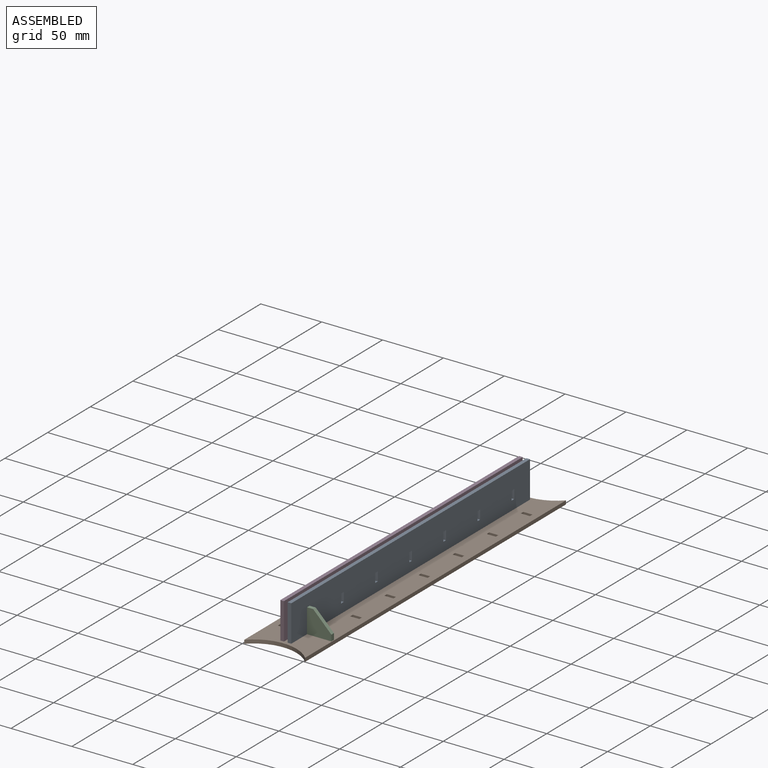
[diagram: assembled view]
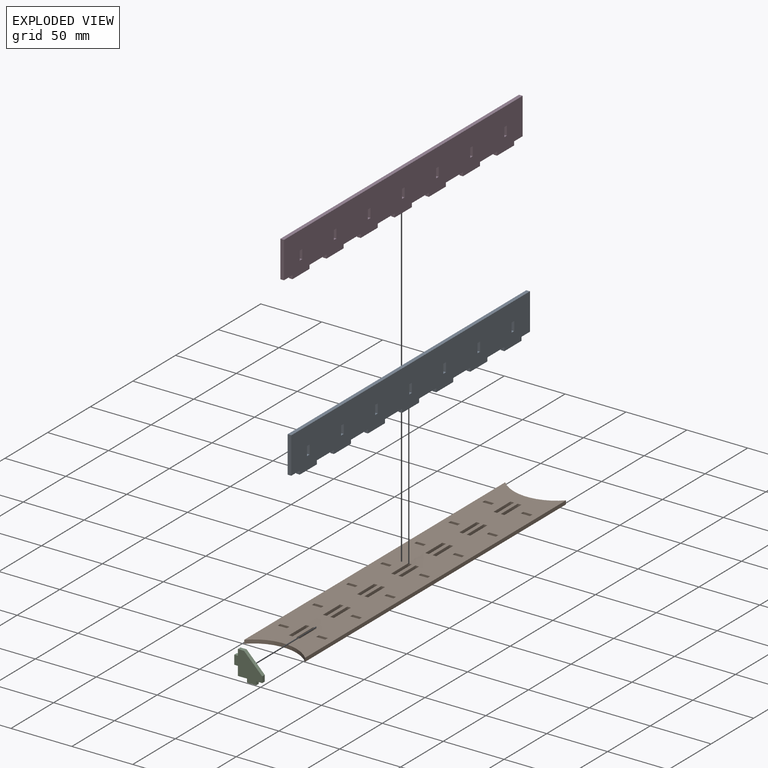
[diagram: exploded view]
GUIDED TOUR — MATED ASSEMBLY (Onshape document f16a4e3d63bdeb27dae0e83d, AutoMate assembly f16a4e3d63bdeb27dae0e83d_4ba44d078bdaf098a974d237_57d0ed7647b12c757feada9e_default)

This assembly has 4 components, labeled P0..P3 below (a component is one placed occurrence of a part; the same part can appear more than once), held together by 3 mates. A mate is a constraint between two components; its type names the relative motion it leaves free:
  FASTENED — locks the two components together rigidly (no relative motion).
Axis/direction vectors are unit vectors and 'through' points are millimeter coordinates, both in the assembly's world frame.

MATES
  1. FASTENED "Fastened 2": P1 <-> P3, direction (0.000, 0.000, -1.000) through (-70.88, 105.11, -66.87) mm
  2. FASTENED "Fastened 3": P2 <-> P1, direction (0.000, 0.000, -1.000) through (-48.38, -124.89, -66.87) mm
  3. FASTENED "Fastened 1": P1 <-> P0, direction (0.000, 0.000, -1.000) through (-64.88, -114.89, -66.87) mm

ASSEMBLY ORDER
  1. P1 — the base component [order verified]
  2. P0 [order verified]
  3. P2 [order verified]
  4. P3 [order verified]
Order-tag legend:
  [order verified] — this step's position reverses a verified removal order: the component was checked to insert without passing through the ones already placed.

Of the 4 components, 4 carry the full construction recipe — the FeatureScript program that regenerates the part's solid from scratch; the rest are supplied as boundary geometry only.
Each toured component is shown spotlighted twice — in the assembled view, then in the exploded view, where a leader line traces a displaced component back to its assembled socket (saturated green if recipe-attached, orange if geometry-only; every other component desaturated gray) — followed by its recipe or geometry summary and the mates that hold it.
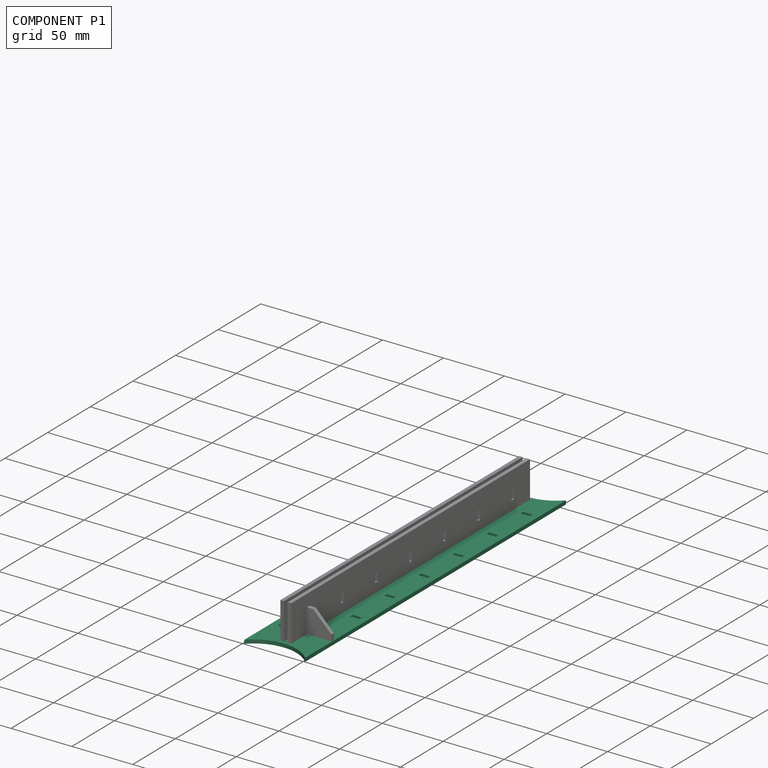
[diagram: component P1 — assembled]
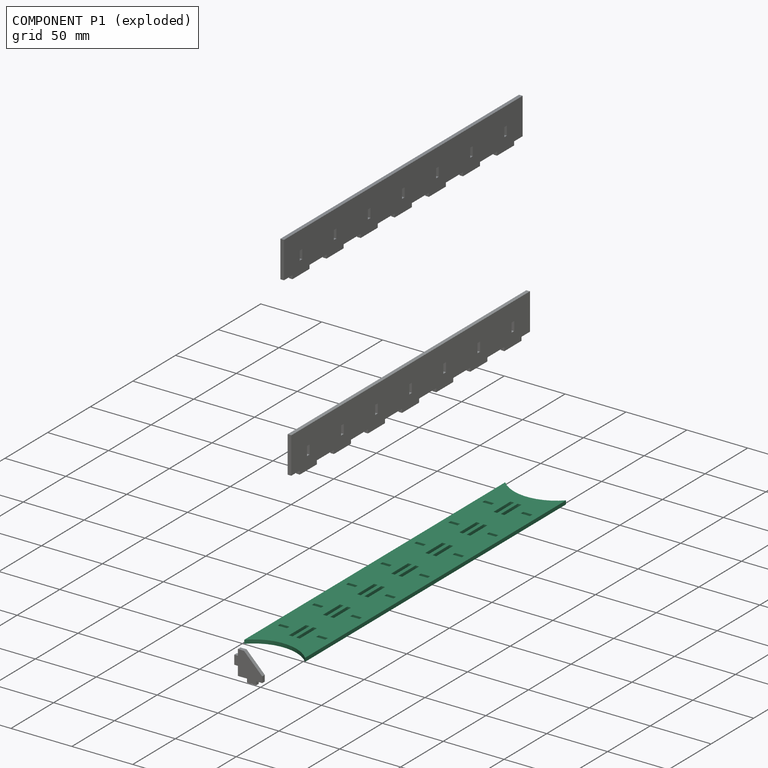
[diagram: component P1 — exploded]
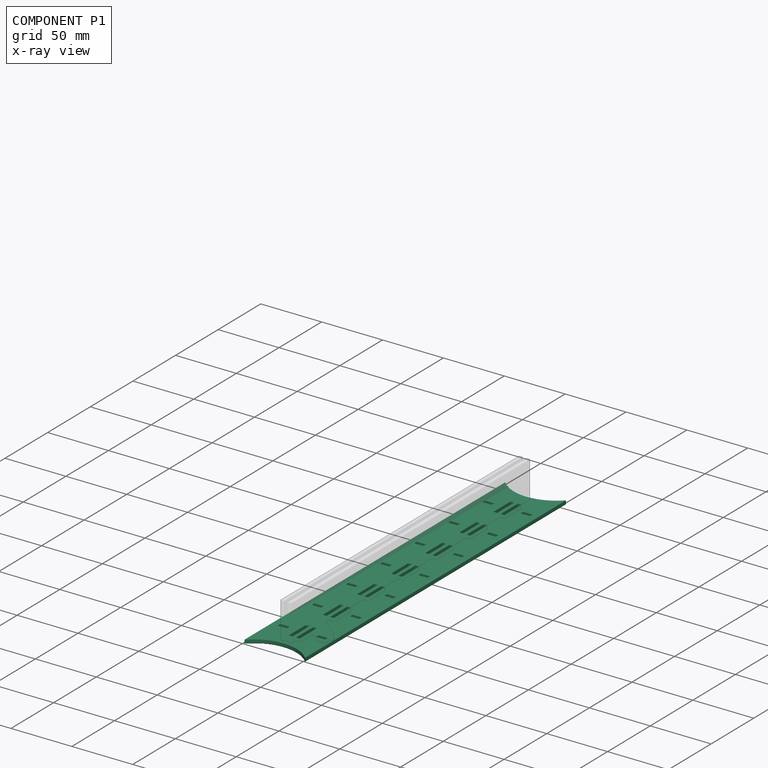
[diagram: component P1 — x-ray view]
COMPONENT P1 — recipe-attached (CADFS 00589757, mesh-verified: the recipe's output STEP matches this component's geometry to below the mesh-comparison resolution (tessellation chordal tolerance ~0.465 mm)).
Held by: FASTENED mate "Fastened 2" to P3; FASTENED mate "Fastened 3" to P2; FASTENED mate "Fastened 1" to P0.
Construction recipe (FeatureScript — the CAD program that rebuilds this solid; sketch coordinates are in the units given by the * unit suffixes, e.g. mm):

FeatureScript 1511;
import(path : "onshape/std/geometry.fs", version : "1511.0");
import(path : "onshape/std/common.fs", version : "1511.0");
const mm = millimeter;
const VERTEX = EntityType.VERTEX;
const EDGE = EntityType.EDGE;
const FACE = EntityType.FACE;
const BODY = EntityType.BODY;
function v(x, y){return vector(x, y);}
function OD(order){return orderDisambiguation(order);}
function OSD(set){return originalSetDisambiguation(set);}
function TD(topology){return topologyDisambiguation(topology);}
function TDD(query){return trueDependencyDisambiguation(query);}
function sQuery(a, b, c) {return sketchEntityQuery(a, b, c);}

annotation { "Feature Type Name" : "Feature", "Feature Type Description" : "" }
export const myFeature = defineFeature(function(context is Context, id is Id, definition is map)
    precondition{}
    {
        {
            var Q0;
            Q0=qCreatedBy(makeId("Top.planeOp"),FACE);
            var sketch = newSketch(context, id + "F0", { "sketchPlane" : qUnion([Q0])});
            skLineSegment(sketch, "E0.bottom", {"start": v(25, 140) * mm, "end": v(-25, 140) * mm});
            skLineSegment(sketch, "E0.top", {"start": v(25, -140) * mm, "end": v(-25, -140) * mm});
            skLineSegment(sketch, "E0.left", {"start": v(25, 140) * mm, "end": v(25, -140) * mm});
            skLineSegment(sketch, "E0.right", {"start": v(-25, 140) * mm, "end": v(-25, -140) * mm});
            skPoint(sketch, "E0.middle", {"position": v(0, 0) * mm});
            skSolve(sketch);
        }
        {
            var Q0;
            Q0=makeQuery(id+"F0.imprint","IMPRINT",FACE,{"disambiguationData":[TD([[makeQuery(id+"F0.imprint","IMPRINT",EDGE,{"derivedFrom":sQuery(id+"F0.wireOp",EDGE,"E0.bottom")}),1.0]])]});
            extrude(context, id + "F1", {"entities" : qUnion([Q0]), "depth" : 3 * mm, "offsetDistance" : 25 * mm});
        }
        {
            var Q0;
            Q0=makeQuery(id+"F1.opExtrude","CAP_FACE",FACE,{"disambiguationData":[OSD([sQuery(id+"F0.wireOp",EDGE,"E0.bottom"),sQuery(id+"F0.wireOp",EDGE,"E0.top"),sQuery(id+"F0.wireOp",EDGE,"E0.left"),sQuery(id+"F0.wireOp",EDGE,"E0.right")])],"isStart":false});
            var sketch = newSketch(context, id + "F2", { "sketchPlane" : qUnion([Q0])});
            skLineSegment(sketch, "E1", {"start": v(0, 140) * mm, "end": v(0, -140) * mm, "construction": true});
            skLineSegment(sketch, "E2.bottom", {"start": v(1.5, 140) * mm, "end": v(-1.5, 140) * mm, "construction": true});
            skLineSegment(sketch, "E2.top", {"start": v(1.5, -140) * mm, "end": v(-1.5, -140) * mm, "construction": true});
            skLineSegment(sketch, "E2.left", {"start": v(1.5, 140) * mm, "end": v(1.5, 130) * mm, "construction": true});
            skLineSegment(sketch, "E2.right", {"start": v(-1.5, 140) * mm, "end": v(-1.5, 130) * mm, "construction": true});
            skPoint(sketch, "E2.middle", {"position": v(0, 0) * mm});
            skLineSegment(sketch, "E3.bottom", {"start": v(1.5, 130) * mm, "end": v(4.5, 130) * mm});
            skLineSegment(sketch, "E3.top", {"start": v(1.5, 110) * mm, "end": v(4.5, 110) * mm});
            skLineSegment(sketch, "E3.right", {"start": v(4.5, 130) * mm, "end": v(4.5, 110) * mm});
            skLineSegment(sketch, "E4.trimOffspring", {"start": v(1.5, 110) * mm, "end": v(1.5, -140) * mm, "construction": true});
            skLineSegment(sketch, "E5", {"start": v(1.5, 130) * mm, "end": v(1.5, 110) * mm});
            skLineSegment(sketch, "E6.0.1.0", {"start": v(4.5, 90) * mm, "end": v(4.5, 70) * mm});
            skLineSegment(sketch, "E6.0.1.1", {"start": v(1.5, 90) * mm, "end": v(4.5, 90) * mm});
            skLineSegment(sketch, "E6.0.1.2", {"start": v(1.5, 90) * mm, "end": v(1.5, 70) * mm});
            skLineSegment(sketch, "E6.0.1.3", {"start": v(1.5, 70) * mm, "end": v(4.5, 70) * mm});
            skLineSegment(sketch, "E6.0.2.0", {"start": v(4.5, 50) * mm, "end": v(4.5, 30) * mm});
            skLineSegment(sketch, "E6.0.2.1", {"start": v(1.5, 50) * mm, "end": v(4.5, 50) * mm});
            skLineSegment(sketch, "E6.0.2.2", {"start": v(1.5, 50) * mm, "end": v(1.5, 30) * mm});
            skLineSegment(sketch, "E6.0.2.3", {"start": v(1.5, 30) * mm, "end": v(4.5, 30) * mm});
            skLineSegment(sketch, "E6.0.3.0", {"start": v(4.5, 10) * mm, "end": v(4.5, -10) * mm});
            skLineSegment(sketch, "E6.0.3.1", {"start": v(1.5, 10) * mm, "end": v(4.5, 10) * mm});
            skLineSegment(sketch, "E6.0.3.2", {"start": v(1.5, 10) * mm, "end": v(1.5, -10) * mm});
            skLineSegment(sketch, "E6.0.3.3", {"start": v(1.5, -10) * mm, "end": v(4.5, -10) * mm});
            skLineSegment(sketch, "E6.0.4.0", {"start": v(4.5, -30) * mm, "end": v(4.5, -50) * mm});
            skLineSegment(sketch, "E6.0.4.1", {"start": v(1.5, -30) * mm, "end": v(4.5, -30) * mm});
            skLineSegment(sketch, "E6.0.4.2", {"start": v(1.5, -30) * mm, "end": v(1.5, -50) * mm});
            skLineSegment(sketch, "E6.0.4.3", {"start": v(1.5, -50) * mm, "end": v(4.5, -50) * mm});
            skLineSegment(sketch, "E6.0.5.0", {"start": v(4.5, -70) * mm, "end": v(4.5, -90) * mm});
            skLineSegment(sketch, "E6.0.5.1", {"start": v(1.5, -70) * mm, "end": v(4.5, -70) * mm});
            skLineSegment(sketch, "E6.0.5.2", {"start": v(1.5, -70) * mm, "end": v(1.5, -90) * mm});
            skLineSegment(sketch, "E6.0.5.3", {"start": v(1.5, -90) * mm, "end": v(4.5, -90) * mm});
            skLineSegment(sketch, "E6.0.6.0", {"start": v(4.5, -110) * mm, "end": v(4.5, -130) * mm});
            skLineSegment(sketch, "E6.0.6.1", {"start": v(1.5, -110) * mm, "end": v(4.5, -110) * mm});
            skLineSegment(sketch, "E6.0.6.2", {"start": v(1.5, -110) * mm, "end": v(1.5, -130) * mm});
            skLineSegment(sketch, "E6.0.6.3", {"start": v(1.5, -130) * mm, "end": v(4.5, -130) * mm});
            skLineSegment(sketch, "E6.direction1", {"start": v(4.5, 110) * mm, "end": v(29.5, 110) * mm, "construction": true});
            skLineSegment(sketch, "E6.direction2", {"start": v(4.5, 110) * mm, "end": v(4.5, 70) * mm, "construction": true});
            skLineSegment(sketch, "E7.bottom", {"start": v(-1.5, 130) * mm, "end": v(-4.5, 130) * mm});
            skLineSegment(sketch, "E7.top", {"start": v(-1.5, 110) * mm, "end": v(-4.5, 110) * mm});
            skLineSegment(sketch, "E7.right", {"start": v(-4.5, 130) * mm, "end": v(-4.5, 110) * mm});
            skLineSegment(sketch, "E8.trimOffspring", {"start": v(-1.5, 110) * mm, "end": v(-1.5, -140) * mm, "construction": true});
            skLineSegment(sketch, "E9", {"start": v(-1.5, 130) * mm, "end": v(-1.5, 110) * mm});
            skLineSegment(sketch, "E10.0.1.0", {"start": v(-1.5, 90) * mm, "end": v(-4.5, 90) * mm});
            skLineSegment(sketch, "E10.0.1.1", {"start": v(-1.5, 90) * mm, "end": v(-1.5, 70) * mm});
            skLineSegment(sketch, "E10.0.1.2", {"start": v(-4.5, 90) * mm, "end": v(-4.5, 70) * mm});
            skLineSegment(sketch, "E10.0.1.3", {"start": v(-1.5, 70) * mm, "end": v(-4.5, 70) * mm});
            skLineSegment(sketch, "E10.0.2.0", {"start": v(-1.5, 50) * mm, "end": v(-4.5, 50) * mm});
            skLineSegment(sketch, "E10.0.2.1", {"start": v(-1.5, 50) * mm, "end": v(-1.5, 30) * mm});
            skLineSegment(sketch, "E10.0.2.2", {"start": v(-4.5, 50) * mm, "end": v(-4.5, 30) * mm});
            skLineSegment(sketch, "E10.0.2.3", {"start": v(-1.5, 30) * mm, "end": v(-4.5, 30) * mm});
            skLineSegment(sketch, "E10.0.3.0", {"start": v(-1.5, 10) * mm, "end": v(-4.5, 10) * mm});
            skLineSegment(sketch, "E10.0.3.1", {"start": v(-1.5, 10) * mm, "end": v(-1.5, -10) * mm});
            skLineSegment(sketch, "E10.0.3.2", {"start": v(-4.5, 10) * mm, "end": v(-4.5, -10) * mm});
            skLineSegment(sketch, "E10.0.3.3", {"start": v(-1.5, -10) * mm, "end": v(-4.5, -10) * mm});
            skLineSegment(sketch, "E10.0.4.0", {"start": v(-1.5, -30) * mm, "end": v(-4.5, -30) * mm});
            skLineSegment(sketch, "E10.0.4.1", {"start": v(-1.5, -30) * mm, "end": v(-1.5, -50) * mm});
            skLineSegment(sketch, "E10.0.4.2", {"start": v(-4.5, -30) * mm, "end": v(-4.5, -50) * mm});
            skLineSegment(sketch, "E10.0.4.3", {"start": v(-1.5, -50) * mm, "end": v(-4.5, -50) * mm});
            skLineSegment(sketch, "E10.0.5.0", {"start": v(-1.5, -70) * mm, "end": v(-4.5, -70) * mm});
            skLineSegment(sketch, "E10.0.5.1", {"start": v(-1.5, -70) * mm, "end": v(-1.5, -90) * mm});
            skLineSegment(sketch, "E10.0.5.2", {"start": v(-4.5, -70) * mm, "end": v(-4.5, -90) * mm});
            skLineSegment(sketch, "E10.0.5.3", {"start": v(-1.5, -90) * mm, "end": v(-4.5, -90) * mm});
            skLineSegment(sketch, "E10.0.6.0", {"start": v(-1.5, -110) * mm, "end": v(-4.5, -110) * mm});
            skLineSegment(sketch, "E10.0.6.1", {"start": v(-1.5, -110) * mm, "end": v(-1.5, -130) * mm});
            skLineSegment(sketch, "E10.0.6.2", {"start": v(-4.5, -110) * mm, "end": v(-4.5, -130) * mm});
            skLineSegment(sketch, "E10.0.6.3", {"start": v(-1.5, -130) * mm, "end": v(-4.5, -130) * mm});
            skLineSegment(sketch, "E10.direction1", {"start": v(-4.5, 130) * mm, "end": v(20.5, 130) * mm, "construction": true});
            skLineSegment(sketch, "E10.direction2", {"start": v(-4.5, 130) * mm, "end": v(-4.5, 90) * mm, "construction": true});
            skSolve(sketch);
        }
        {
            var Q0;
            Q0 = qSketchRegion(id + "F2", true);
            extrude(context, id + "F3", {"entities" : qUnion([Q0]), "operationType" : NewBodyOperationType.REMOVE, "oppositeDirection" : true, "depth" : 25 * mm, "offsetDistance" : 25 * mm});
        }
        {
            var Q0;
            Q0=makeQuery(id+"F1.opExtrude","CAP_FACE",FACE,{"disambiguationData":[OSD([sQuery(id+"F0.wireOp",EDGE,"E0.bottom"),sQuery(id+"F0.wireOp",EDGE,"E0.top"),sQuery(id+"F0.wireOp",EDGE,"E0.left"),sQuery(id+"F0.wireOp",EDGE,"E0.right")])],"isStart":false});
            var sketch = newSketch(context, id + "F4", { "sketchPlane" : qUnion([Q0])});
            skLineSegment(sketch, "E11", {"start": v(4.5, 120) * mm, "end": v(12, 120) * mm, "construction": true});
            skLineSegment(sketch, "E12", {"start": v(12, 120) * mm, "end": v(19.5, 120) * mm, "construction": true});
            skLineSegment(sketch, "E13.bottom", {"start": v(19.5, 121.5) * mm, "end": v(12, 121.5) * mm});
            skLineSegment(sketch, "E13.top", {"start": v(19.5, 118.5) * mm, "end": v(12, 118.5) * mm});
            skLineSegment(sketch, "E13.left", {"start": v(19.5, 121.5) * mm, "end": v(19.5, 118.5) * mm});
            skLineSegment(sketch, "E13.right", {"start": v(12, 121.5) * mm, "end": v(12, 118.5) * mm});
            skPoint(sketch, "E13.middle", {"position": v(15.75, 120) * mm});
            skLineSegment(sketch, "E14.0.1.0", {"start": v(19.5, 81.5) * mm, "end": v(12, 81.5) * mm});
            skLineSegment(sketch, "E14.0.1.1", {"start": v(12, 81.5) * mm, "end": v(12, 78.5) * mm});
            skLineSegment(sketch, "E14.0.1.2", {"start": v(19.5, 78.5) * mm, "end": v(12, 78.5) * mm});
            skLineSegment(sketch, "E14.0.1.3", {"start": v(19.5, 81.5) * mm, "end": v(19.5, 78.5) * mm});
            skLineSegment(sketch, "E14.0.2.0", {"start": v(19.5, 41.5) * mm, "end": v(12, 41.5) * mm});
            skLineSegment(sketch, "E14.0.2.1", {"start": v(12, 41.5) * mm, "end": v(12, 38.5) * mm});
            skLineSegment(sketch, "E14.0.2.2", {"start": v(19.5, 38.5) * mm, "end": v(12, 38.5) * mm});
            skLineSegment(sketch, "E14.0.2.3", {"start": v(19.5, 41.5) * mm, "end": v(19.5, 38.5) * mm});
            skLineSegment(sketch, "E14.0.3.0", {"start": v(19.5, 1.5) * mm, "end": v(12, 1.5) * mm});
            skLineSegment(sketch, "E14.0.3.1", {"start": v(12, 1.5) * mm, "end": v(12, -1.5) * mm});
            skLineSegment(sketch, "E14.0.3.2", {"start": v(19.5, -1.5) * mm, "end": v(12, -1.5) * mm});
            skLineSegment(sketch, "E14.0.3.3", {"start": v(19.5, 1.5) * mm, "end": v(19.5, -1.5) * mm});
            skLineSegment(sketch, "E14.0.4.0", {"start": v(19.5, -38.5) * mm, "end": v(12, -38.5) * mm});
            skLineSegment(sketch, "E14.0.4.1", {"start": v(12, -38.5) * mm, "end": v(12, -41.5) * mm});
            skLineSegment(sketch, "E14.0.4.2", {"start": v(19.5, -41.5) * mm, "end": v(12, -41.5) * mm});
            skLineSegment(sketch, "E14.0.4.3", {"start": v(19.5, -38.5) * mm, "end": v(19.5, -41.5) * mm});
            skLineSegment(sketch, "E14.0.5.0", {"start": v(19.5, -78.5) * mm, "end": v(12, -78.5) * mm});
            skLineSegment(sketch, "E14.0.5.1", {"start": v(12, -78.5) * mm, "end": v(12, -81.5) * mm});
            skLineSegment(sketch, "E14.0.5.2", {"start": v(19.5, -81.5) * mm, "end": v(12, -81.5) * mm});
            skLineSegment(sketch, "E14.0.5.3", {"start": v(19.5, -78.5) * mm, "end": v(19.5, -81.5) * mm});
            skLineSegment(sketch, "E14.0.6.0", {"start": v(19.5, -118.5) * mm, "end": v(12, -118.5) * mm});
            skLineSegment(sketch, "E14.0.6.1", {"start": v(12, -118.5) * mm, "end": v(12, -121.5) * mm});
            skLineSegment(sketch, "E14.0.6.2", {"start": v(19.5, -121.5) * mm, "end": v(12, -121.5) * mm});
            skLineSegment(sketch, "E14.0.6.3", {"start": v(19.5, -118.5) * mm, "end": v(19.5, -121.5) * mm});
            skLineSegment(sketch, "E14.direction1", {"start": v(12, 118.5) * mm, "end": v(37, 118.5) * mm, "construction": true});
            skLineSegment(sketch, "E14.direction2", {"start": v(12, 118.5) * mm, "end": v(12, 78.5) * mm, "construction": true});
            skLineSegment(sketch, "E15", {"start": v(0, 140) * mm, "end": v(0, 132.73) * mm, "construction": true});
            skPoint(sketch, "E15.endSnap0", {"position": v(0, 140) * mm});
            skLineSegment(sketch, "E16.MirrorCS", {"start": v(-19.5, 121.5) * mm, "end": v(-12, 121.5) * mm});
            skLineSegment(sketch, "E17.MirrorCS", {"start": v(-19.5, 118.5) * mm, "end": v(-12, 118.5) * mm});
            skLineSegment(sketch, "E18.MirrorCS", {"start": v(-12, 121.5) * mm, "end": v(-12, 118.5) * mm});
            skLineSegment(sketch, "E19.MirrorCS", {"start": v(-12, 120) * mm, "end": v(-19.5, 120) * mm, "construction": true});
            skLineSegment(sketch, "E20.MirrorCS", {"start": v(-19.5, 121.5) * mm, "end": v(-19.5, 118.5) * mm});
            skLineSegment(sketch, "E21.MirrorCS", {"start": v(-19.5, -78.5) * mm, "end": v(-19.5, -81.5) * mm});
            skLineSegment(sketch, "E22.MirrorCS", {"start": v(-19.5, 41.5) * mm, "end": v(-19.5, 38.5) * mm});
            skLineSegment(sketch, "E23.MirrorCS", {"start": v(-19.5, 81.5) * mm, "end": v(-12, 81.5) * mm});
            skLineSegment(sketch, "E24.MirrorCS", {"start": v(-12, 81.5) * mm, "end": v(-12, 78.5) * mm});
            skLineSegment(sketch, "E25.MirrorCS", {"start": v(-19.5, 78.5) * mm, "end": v(-12, 78.5) * mm});
            skLineSegment(sketch, "E26.MirrorCS", {"start": v(-19.5, -78.5) * mm, "end": v(-12, -78.5) * mm});
            skLineSegment(sketch, "E27.MirrorCS", {"start": v(-19.5, -38.5) * mm, "end": v(-12, -38.5) * mm});
            skLineSegment(sketch, "E28.MirrorCS", {"start": v(-19.5, -118.5) * mm, "end": v(-12, -118.5) * mm});
            skLineSegment(sketch, "E29.MirrorCS", {"start": v(-12, -38.5) * mm, "end": v(-12, -41.5) * mm});
            skLineSegment(sketch, "E30.MirrorCS", {"start": v(-19.5, -1.5) * mm, "end": v(-12, -1.5) * mm});
            skLineSegment(sketch, "E31.MirrorCS", {"start": v(-12, -118.5) * mm, "end": v(-12, -121.5) * mm});
            skLineSegment(sketch, "E32.MirrorCS", {"start": v(-19.5, -118.5) * mm, "end": v(-19.5, -121.5) * mm});
            skLineSegment(sketch, "E33.MirrorCS", {"start": v(-19.5, -41.5) * mm, "end": v(-12, -41.5) * mm});
            skLineSegment(sketch, "E34.MirrorCS", {"start": v(-19.5, 1.5) * mm, "end": v(-12, 1.5) * mm});
            skLineSegment(sketch, "E35.MirrorCS", {"start": v(-12, 1.5) * mm, "end": v(-12, -1.5) * mm});
            skLineSegment(sketch, "E36.MirrorCS", {"start": v(-12, -78.5) * mm, "end": v(-12, -81.5) * mm});
            skLineSegment(sketch, "E37.MirrorCS", {"start": v(-19.5, 81.5) * mm, "end": v(-19.5, 78.5) * mm});
            skLineSegment(sketch, "E38.MirrorCS", {"start": v(-19.5, 41.5) * mm, "end": v(-12, 41.5) * mm});
            skLineSegment(sketch, "E39.MirrorCS", {"start": v(-19.5, -121.5) * mm, "end": v(-12, -121.5) * mm});
            skLineSegment(sketch, "E40.MirrorCS", {"start": v(-12, 41.5) * mm, "end": v(-12, 38.5) * mm});
            skLineSegment(sketch, "E41.MirrorCS", {"start": v(-19.5, 38.5) * mm, "end": v(-12, 38.5) * mm});
            skLineSegment(sketch, "E42.MirrorCS", {"start": v(-19.5, -81.5) * mm, "end": v(-12, -81.5) * mm});
            skLineSegment(sketch, "E43.MirrorCS", {"start": v(-19.5, 1.5) * mm, "end": v(-19.5, -1.5) * mm});
            skLineSegment(sketch, "E44.MirrorCS", {"start": v(-19.5, -38.5) * mm, "end": v(-19.5, -41.5) * mm});
            skPoint(sketch, "E45.MirrorP", {"position": v(-15.75, 120) * mm});
            skLineSegment(sketch, "E46.MirrorCS", {"start": v(-12, 118.5) * mm, "end": v(-12, 78.5) * mm, "construction": true});
            skLineSegment(sketch, "E47.MirrorCS", {"start": v(-12, 118.5) * mm, "end": v(-37, 118.5) * mm, "construction": true});
            skSolve(sketch);
        }
        {
            var Q0;
            Q0 = qSketchRegion(id + "F4", true);
            extrude(context, id + "F5", {"entities" : qUnion([Q0]), "operationType" : NewBodyOperationType.REMOVE, "oppositeDirection" : true, "depth" : 25 * mm, "offsetDistance" : 25 * mm});
        }
        {
            var Q0;
            Q0=makeQuery(id+"F1.opExtrude","CAP_FACE",FACE,{"disambiguationData":[OSD([sQuery(id+"F0.wireOp",EDGE,"E0.bottom"),sQuery(id+"F0.wireOp",EDGE,"E0.top"),sQuery(id+"F0.wireOp",EDGE,"E0.left"),sQuery(id+"F0.wireOp",EDGE,"E0.right")])],"isStart":false});
            var sketch = newSketch(context, id + "F6", { "sketchPlane" : qUnion([Q0])});
            skLineSegment(sketch, "E48", {"start": v(0, 140) * mm, "end": v(0, 142.5) * mm, "construction": true});
            skPoint(sketch, "E48.endSnap0", {"position": v(0, 140) * mm});
            skLineSegment(sketch, "E49", {"start": v(0, 142.5) * mm, "end": v(0, 177.5) * mm, "construction": true});
            skArc(sketch, "E50", {"start": v(-25, 153) * mm, "mid": v(0, 142.5) * mm, "end": v(25, 153) * mm});
            skLineSegment(sketch, "E51", {"start": v(-25, 140) * mm, "end": v(-25, 153) * mm});
            skLineSegment(sketch, "E52.MirrorCS", {"start": v(25, 140) * mm, "end": v(25, 153) * mm});
            skLineSegment(sketch, "E53", {"start": v(-25, 140) * mm, "end": v(25, 140) * mm});
            skLineSegment(sketch, "E54.MirrorCS", {"start": v(0, -140) * mm, "end": v(0, -142.5) * mm, "construction": true});
            skPoint(sketch, "E55.MirrorP", {"position": v(0, -140) * mm});
            skLineSegment(sketch, "E56.MirrorCS", {"start": v(-25, -140) * mm, "end": v(25, -140) * mm});
            skLineSegment(sketch, "E57.MirrorCS", {"start": v(25, -140) * mm, "end": v(25, -153) * mm});
            skLineSegment(sketch, "E58.MirrorCS", {"start": v(-25, -140) * mm, "end": v(-25, -153) * mm});
            skArc(sketch, "E59.MirrorCS", {"start": v(-25, -153) * mm, "mid": v(0, -142.5) * mm, "end": v(25, -153) * mm});
            skSolve(sketch);
        }
        {
            var Q0;
            Q0 = qSketchRegion(id + "F6", true);
            extrude(context, id + "F7", {"entities" : qUnion([Q0]), "operationType" : NewBodyOperationType.ADD, "oppositeDirection" : true, "depth" : 3 * mm, "offsetDistance" : 25 * mm});
        }
    });
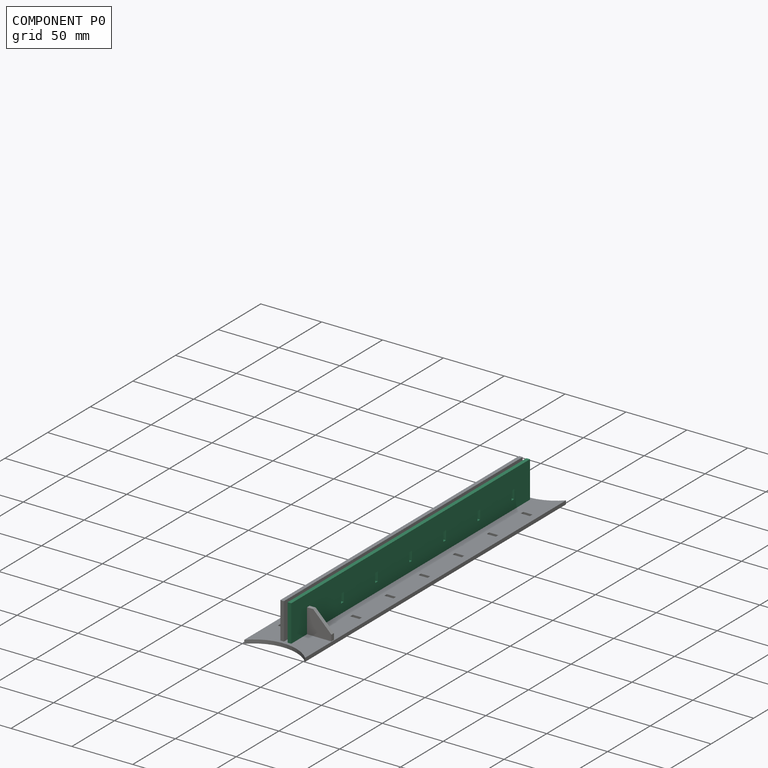
[diagram: component P0 — assembled]
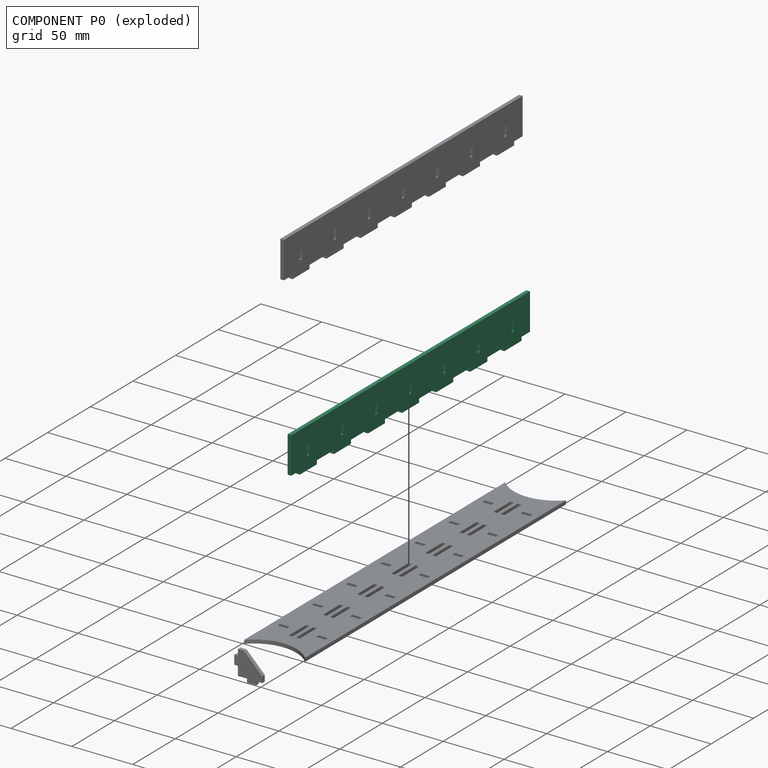
[diagram: component P0 — exploded]
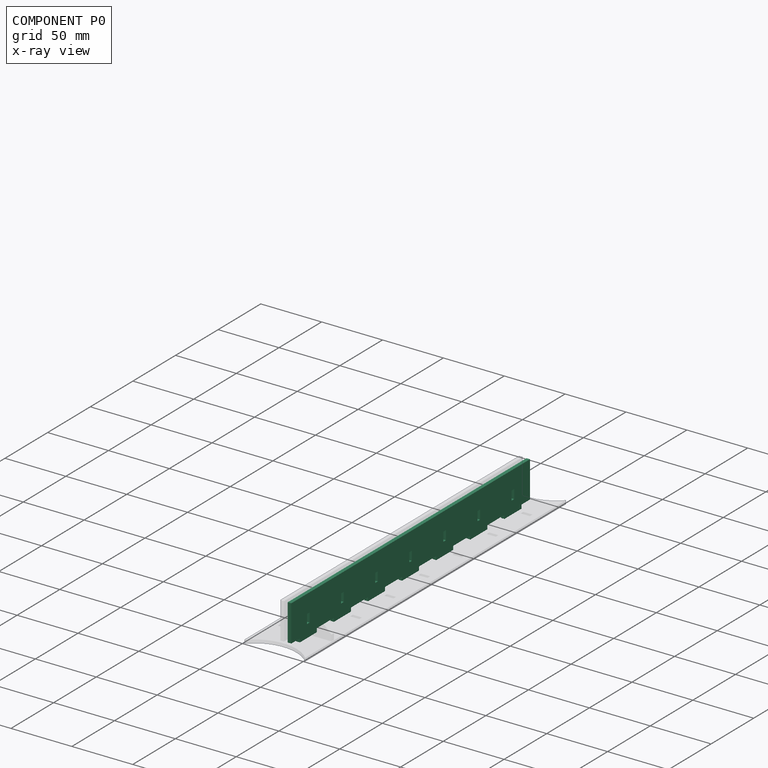
[diagram: component P0 — x-ray view]
COMPONENT P0 — recipe-attached (CADFS 00589759, mesh-verified: the recipe's output STEP matches this component's geometry to below the mesh-comparison resolution (tessellation chordal tolerance ~0.423 mm)).
Held by: FASTENED mate "Fastened 1" to P1.
Construction recipe (FeatureScript — the CAD program that rebuilds this solid; sketch coordinates are in the units given by the * unit suffixes, e.g. mm):

FeatureScript 1511;
import(path : "onshape/std/geometry.fs", version : "1511.0");
import(path : "onshape/std/common.fs", version : "1511.0");
const mm = millimeter;
const VERTEX = EntityType.VERTEX;
const EDGE = EntityType.EDGE;
const FACE = EntityType.FACE;
const BODY = EntityType.BODY;
function v(x, y){return vector(x, y);}
function OD(order){return orderDisambiguation(order);}
function OSD(set){return originalSetDisambiguation(set);}
function TD(topology){return topologyDisambiguation(topology);}
function TDD(query){return trueDependencyDisambiguation(query);}
function sQuery(a, b, c) {return sketchEntityQuery(a, b, c);}

annotation { "Feature Type Name" : "Feature", "Feature Type Description" : "" }
export const myFeature = defineFeature(function(context is Context, id is Id, definition is map)
    precondition{}
    {
        {
            var Q0;
            Q0=qCreatedBy(makeId("Right.planeOp"),FACE);
            var sketch = newSketch(context, id + "F0", { "sketchPlane" : qUnion([Q0])});
            skLineSegment(sketch, "E0.bottom", {"start": v(140, -15) * mm, "end": v(-140, -15) * mm});
            skLineSegment(sketch, "E0.top", {"start": v(140, 15) * mm, "end": v(-140, 15) * mm});
            skLineSegment(sketch, "E0.left", {"start": v(140, -15) * mm, "end": v(140, 15) * mm});
            skLineSegment(sketch, "E0.right", {"start": v(-140, -15) * mm, "end": v(-140, 15) * mm});
            skPoint(sketch, "E0.middle", {"position": v(0, 0) * mm});
            skSolve(sketch);
        }
        {
            var Q0;
            Q0 = qSketchRegion(id + "F0", true);
            extrude(context, id + "F1", {"entities" : qUnion([Q0]), "depth" : 3 * mm, "offsetDistance" : 25 * mm});
        }
        {
            var Q0;
            Q0=makeQuery(id+"F1.opExtrude","CAP_FACE",FACE,{"disambiguationData":[OSD([sQuery(id+"F0.wireOp",EDGE,"E0.bottom"),sQuery(id+"F0.wireOp",EDGE,"E0.top"),sQuery(id+"F0.wireOp",EDGE,"E0.left"),sQuery(id+"F0.wireOp",EDGE,"E0.right")])],"isStart":false});
            var sketch = newSketch(context, id + "F2", { "sketchPlane" : qUnion([Q0])});
            skLineSegment(sketch, "E1", {"start": v(140, -15) * mm, "end": v(130, -15) * mm, "construction": true});
            skLineSegment(sketch, "E2.bottom", {"start": v(130, -15) * mm, "end": v(110, -15) * mm});
            skLineSegment(sketch, "E2.top", {"start": v(130, -18) * mm, "end": v(110, -18) * mm});
            skLineSegment(sketch, "E2.left", {"start": v(130, -15) * mm, "end": v(130, -18) * mm});
            skLineSegment(sketch, "E2.right", {"start": v(110, -15) * mm, "end": v(110, -18) * mm});
            skLineSegment(sketch, "E3.1.0.0", {"start": v(90, -15) * mm, "end": v(90, -18) * mm});
            skLineSegment(sketch, "E3.1.0.1", {"start": v(90, -15) * mm, "end": v(70, -15) * mm});
            skLineSegment(sketch, "E3.1.0.2", {"start": v(90, -18) * mm, "end": v(70, -18) * mm});
            skLineSegment(sketch, "E3.1.0.3", {"start": v(70, -15) * mm, "end": v(70, -18) * mm});
            skLineSegment(sketch, "E3.2.0.0", {"start": v(50, -15) * mm, "end": v(50, -18) * mm});
            skLineSegment(sketch, "E3.2.0.1", {"start": v(50, -15) * mm, "end": v(30, -15) * mm});
            skLineSegment(sketch, "E3.2.0.2", {"start": v(50, -18) * mm, "end": v(30, -18) * mm});
            skLineSegment(sketch, "E3.2.0.3", {"start": v(30, -15) * mm, "end": v(30, -18) * mm});
            skLineSegment(sketch, "E3.3.0.0", {"start": v(10, -15) * mm, "end": v(10, -18) * mm});
            skLineSegment(sketch, "E3.3.0.1", {"start": v(10, -15) * mm, "end": v(-10, -15) * mm});
            skLineSegment(sketch, "E3.3.0.2", {"start": v(10, -18) * mm, "end": v(-10, -18) * mm});
            skLineSegment(sketch, "E3.3.0.3", {"start": v(-10, -15) * mm, "end": v(-10, -18) * mm});
            skLineSegment(sketch, "E3.4.0.0", {"start": v(-30, -15) * mm, "end": v(-30, -18) * mm});
            skLineSegment(sketch, "E3.4.0.1", {"start": v(-30, -15) * mm, "end": v(-50, -15) * mm});
            skLineSegment(sketch, "E3.4.0.2", {"start": v(-30, -18) * mm, "end": v(-50, -18) * mm});
            skLineSegment(sketch, "E3.4.0.3", {"start": v(-50, -15) * mm, "end": v(-50, -18) * mm});
            skLineSegment(sketch, "E3.5.0.0", {"start": v(-70, -15) * mm, "end": v(-70, -18) * mm});
            skLineSegment(sketch, "E3.5.0.1", {"start": v(-70, -15) * mm, "end": v(-90, -15) * mm});
            skLineSegment(sketch, "E3.5.0.2", {"start": v(-70, -18) * mm, "end": v(-90, -18) * mm});
            skLineSegment(sketch, "E3.5.0.3", {"start": v(-90, -15) * mm, "end": v(-90, -18) * mm});
            skLineSegment(sketch, "E3.6.0.0", {"start": v(-110, -15) * mm, "end": v(-110, -18) * mm});
            skLineSegment(sketch, "E3.6.0.1", {"start": v(-110, -15) * mm, "end": v(-130, -15) * mm});
            skLineSegment(sketch, "E3.6.0.2", {"start": v(-110, -18) * mm, "end": v(-130, -18) * mm});
            skLineSegment(sketch, "E3.6.0.3", {"start": v(-130, -15) * mm, "end": v(-130, -18) * mm});
            skLineSegment(sketch, "E3.direction1", {"start": v(130, -18) * mm, "end": v(90, -18) * mm, "construction": true});
            skSolve(sketch);
        }
        {
            var Q0;
            Q0 = qSketchRegion(id + "F2", true);
            var Q1;
            Q1=makeQuery(id+"F1.opExtrude","CAP_FACE",FACE,{"disambiguationData":[OSD([sQuery(id+"F0.wireOp",EDGE,"E0.bottom"),sQuery(id+"F0.wireOp",EDGE,"E0.top"),sQuery(id+"F0.wireOp",EDGE,"E0.left"),sQuery(id+"F0.wireOp",EDGE,"E0.right")])],"isStart":true});
            extrude(context, id + "F3", {"entities" : qUnion([Q0]), "operationType" : NewBodyOperationType.ADD, "endBound" : BoundingType.UP_TO_SURFACE, "oppositeDirection" : true, "depth" : 25 * mm, "endBoundEntityFace" : qUnion([Q1]), "offsetDistance" : 25 * mm});
        }
        {
            var Q0;
            Q0=makeQuery(id+"F3.boolean.opBoolean","MERGE",FACE,{"derivedFrom":[makeQuery(id+"F1.opExtrude","CAP_FACE",FACE,{"disambiguationData":[OSD([sQuery(id+"F0.wireOp",EDGE,"E0.bottom"),sQuery(id+"F0.wireOp",EDGE,"E0.top"),sQuery(id+"F0.wireOp",EDGE,"E0.left"),sQuery(id+"F0.wireOp",EDGE,"E0.right")])],"isStart":false}),makeQuery(id+"F3.opExtrude","CAP_FACE",FACE,{"disambiguationData":[OSD([sQuery(id+"F2.wireOp",EDGE,"E2.bottom"),sQuery(id+"F2.wireOp",EDGE,"E2.top"),sQuery(id+"F2.wireOp",EDGE,"E2.left"),sQuery(id+"F2.wireOp",EDGE,"E2.right")])],"isStart":true}),makeQuery(id+"F3.opExtrude","CAP_FACE",FACE,{"disambiguationData":[OSD([sQuery(id+"F2.wireOp",EDGE,"E3.1.0.0"),sQuery(id+"F2.wireOp",EDGE,"E3.1.0.1"),sQuery(id+"F2.wireOp",EDGE,"E3.1.0.2"),sQuery(id+"F2.wireOp",EDGE,"E3.1.0.3")])],"isStart":true}),makeQuery(id+"F3.opExtrude","CAP_FACE",FACE,{"disambiguationData":[OSD([sQuery(id+"F2.wireOp",EDGE,"E3.2.0.0"),sQuery(id+"F2.wireOp",EDGE,"E3.2.0.1"),sQuery(id+"F2.wireOp",EDGE,"E3.2.0.2"),sQuery(id+"F2.wireOp",EDGE,"E3.2.0.3")])],"isStart":true}),makeQuery(id+"F3.opExtrude","CAP_FACE",FACE,{"disambiguationData":[OSD([sQuery(id+"F2.wireOp",EDGE,"E3.3.0.0"),sQuery(id+"F2.wireOp",EDGE,"E3.3.0.1"),sQuery(id+"F2.wireOp",EDGE,"E3.3.0.2"),sQuery(id+"F2.wireOp",EDGE,"E3.3.0.3")])],"isStart":true}),makeQuery(id+"F3.opExtrude","CAP_FACE",FACE,{"disambiguationData":[OSD([sQuery(id+"F2.wireOp",EDGE,"E3.4.0.0"),sQuery(id+"F2.wireOp",EDGE,"E3.4.0.1"),sQuery(id+"F2.wireOp",EDGE,"E3.4.0.2"),sQuery(id+"F2.wireOp",EDGE,"E3.4.0.3")])],"isStart":true}),makeQuery(id+"F3.opExtrude","CAP_FACE",FACE,{"disambiguationData":[OSD([sQuery(id+"F2.wireOp",EDGE,"E3.5.0.0"),sQuery(id+"F2.wireOp",EDGE,"E3.5.0.1"),sQuery(id+"F2.wireOp",EDGE,"E3.5.0.2"),sQuery(id+"F2.wireOp",EDGE,"E3.5.0.3")])],"isStart":true}),makeQuery(id+"F3.opExtrude","CAP_FACE",FACE,{"disambiguationData":[OSD([sQuery(id+"F2.wireOp",EDGE,"E3.6.0.0"),sQuery(id+"F2.wireOp",EDGE,"E3.6.0.1"),sQuery(id+"F2.wireOp",EDGE,"E3.6.0.2"),sQuery(id+"F2.wireOp",EDGE,"E3.6.0.3")])],"isStart":true})]});
            var sketch = newSketch(context, id + "F4", { "sketchPlane" : qUnion([Q0])});
            skLineSegment(sketch, "E4", {"start": v(130, -15) * mm, "end": v(110, -15) * mm, "construction": true});
            skLineSegment(sketch, "E5", {"start": v(120, -15) * mm, "end": v(120, -3.75) * mm, "construction": true});
            skLineSegment(sketch, "E6.bottom", {"start": v(121.5, -7.5) * mm, "end": v(118.5, -7.5) * mm});
            skLineSegment(sketch, "E6.top", {"start": v(121.5, 0) * mm, "end": v(118.5, 0) * mm});
            skLineSegment(sketch, "E6.left", {"start": v(121.5, -7.5) * mm, "end": v(121.5, 0) * mm});
            skLineSegment(sketch, "E6.right", {"start": v(118.5, -7.5) * mm, "end": v(118.5, 0) * mm});
            skPoint(sketch, "E6.middle", {"position": v(120, -3.75) * mm});
            skLineSegment(sketch, "E7.1.0.0", {"start": v(81.5, -7.5) * mm, "end": v(81.5, 0) * mm});
            skLineSegment(sketch, "E7.1.0.1", {"start": v(81.5, 0) * mm, "end": v(78.5, 0) * mm});
            skLineSegment(sketch, "E7.1.0.2", {"start": v(78.5, -7.5) * mm, "end": v(78.5, 0) * mm});
            skLineSegment(sketch, "E7.1.0.3", {"start": v(81.5, -7.5) * mm, "end": v(78.5, -7.5) * mm});
            skLineSegment(sketch, "E7.2.0.0", {"start": v(41.5, -7.5) * mm, "end": v(41.5, 0) * mm});
            skLineSegment(sketch, "E7.2.0.1", {"start": v(41.5, 0) * mm, "end": v(38.5, 0) * mm});
            skLineSegment(sketch, "E7.2.0.2", {"start": v(38.5, -7.5) * mm, "end": v(38.5, 0) * mm});
            skLineSegment(sketch, "E7.2.0.3", {"start": v(41.5, -7.5) * mm, "end": v(38.5, -7.5) * mm});
            skLineSegment(sketch, "E7.3.0.0", {"start": v(1.5, -7.5) * mm, "end": v(1.5, 0) * mm});
            skLineSegment(sketch, "E7.3.0.1", {"start": v(1.5, 0) * mm, "end": v(-1.5, 0) * mm});
            skLineSegment(sketch, "E7.3.0.2", {"start": v(-1.5, -7.5) * mm, "end": v(-1.5, 0) * mm});
            skLineSegment(sketch, "E7.3.0.3", {"start": v(1.5, -7.5) * mm, "end": v(-1.5, -7.5) * mm});
            skLineSegment(sketch, "E7.4.0.0", {"start": v(-38.5, -7.5) * mm, "end": v(-38.5, 0) * mm});
            skLineSegment(sketch, "E7.4.0.1", {"start": v(-38.5, 0) * mm, "end": v(-41.5, 0) * mm});
            skLineSegment(sketch, "E7.4.0.2", {"start": v(-41.5, -7.5) * mm, "end": v(-41.5, 0) * mm});
            skLineSegment(sketch, "E7.4.0.3", {"start": v(-38.5, -7.5) * mm, "end": v(-41.5, -7.5) * mm});
            skLineSegment(sketch, "E7.5.0.0", {"start": v(-78.5, -7.5) * mm, "end": v(-78.5, 0) * mm});
            skLineSegment(sketch, "E7.5.0.1", {"start": v(-78.5, 0) * mm, "end": v(-81.5, 0) * mm});
            skLineSegment(sketch, "E7.5.0.2", {"start": v(-81.5, -7.5) * mm, "end": v(-81.5, 0) * mm});
            skLineSegment(sketch, "E7.5.0.3", {"start": v(-78.5, -7.5) * mm, "end": v(-81.5, -7.5) * mm});
            skLineSegment(sketch, "E7.6.0.0", {"start": v(-118.5, -7.5) * mm, "end": v(-118.5, 0) * mm});
            skLineSegment(sketch, "E7.6.0.1", {"start": v(-118.5, 0) * mm, "end": v(-121.5, 0) * mm});
            skLineSegment(sketch, "E7.6.0.2", {"start": v(-121.5, -7.5) * mm, "end": v(-121.5, 0) * mm});
            skLineSegment(sketch, "E7.6.0.3", {"start": v(-118.5, -7.5) * mm, "end": v(-121.5, -7.5) * mm});
            skLineSegment(sketch, "E7.direction1", {"start": v(121.5, -7.5) * mm, "end": v(81.5, -7.5) * mm, "construction": true});
            skSolve(sketch);
        }
        {
            var Q0;
            Q0 = qSketchRegion(id + "F4", true);
            extrude(context, id + "F5", {"entities" : qUnion([Q0]), "operationType" : NewBodyOperationType.REMOVE, "oppositeDirection" : true, "depth" : 25 * mm, "offsetDistance" : 25 * mm});
        }
    });
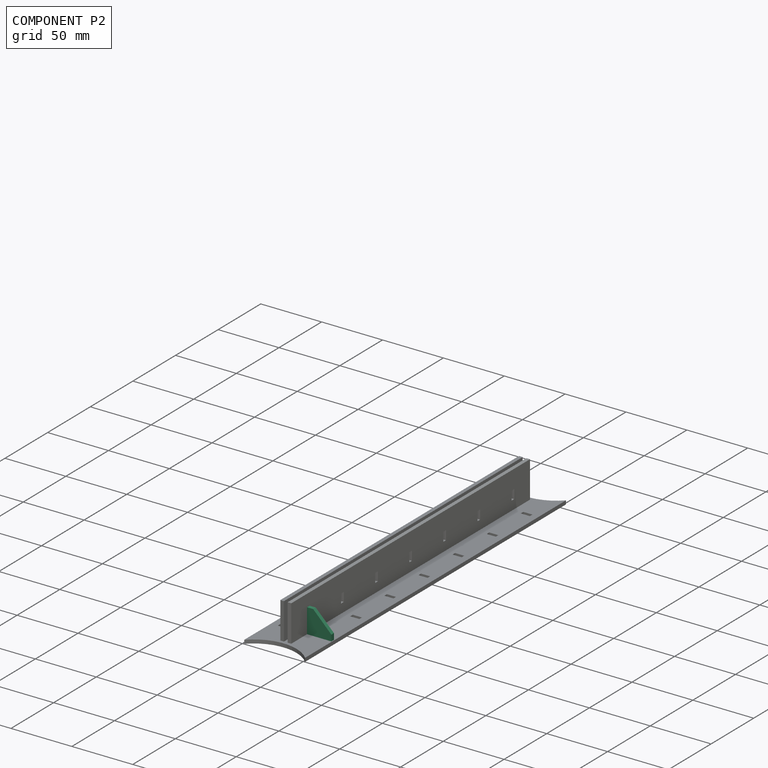
[diagram: component P2 — assembled]
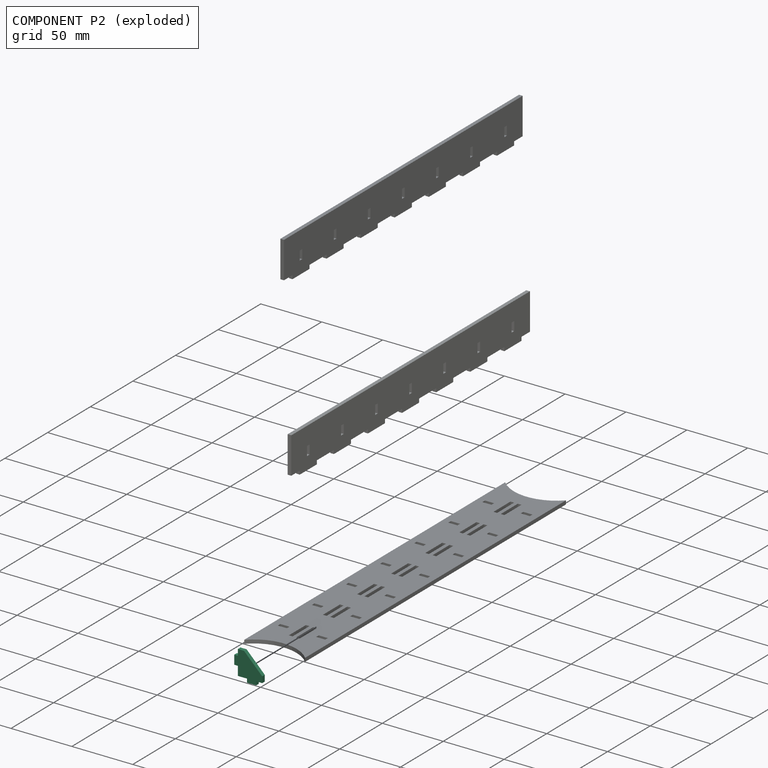
[diagram: component P2 — exploded]
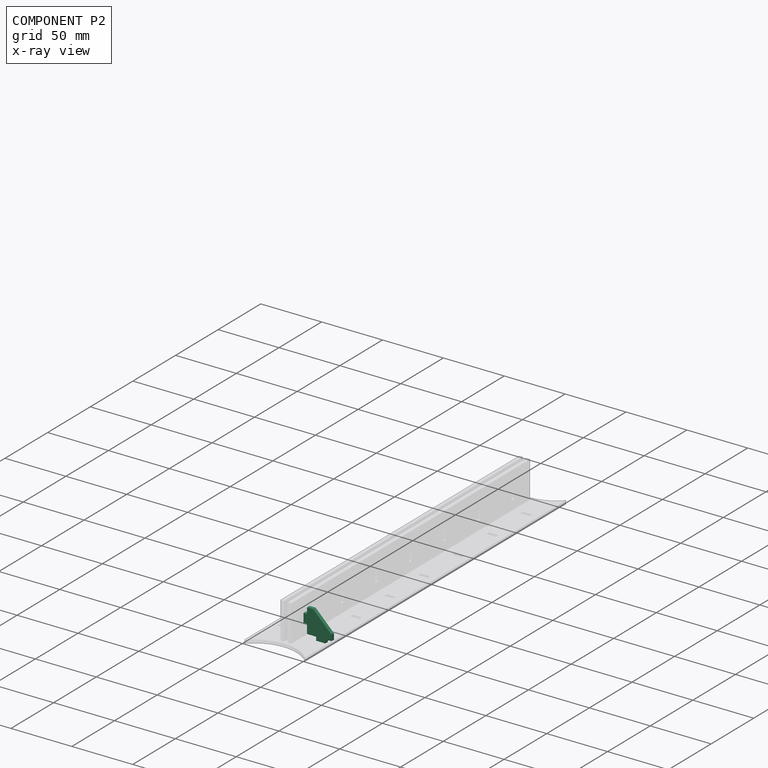
[diagram: component P2 — x-ray view]
COMPONENT P2 — recipe-attached (CADFS 00589761, mesh-verified: the recipe's output STEP matches this component's geometry to below the mesh-comparison resolution (tessellation chordal tolerance ~0.049 mm)).
Held by: FASTENED mate "Fastened 3" to P1.
Construction recipe (FeatureScript — the CAD program that rebuilds this solid; sketch coordinates are in the units given by the * unit suffixes, e.g. mm):

FeatureScript 1511;
import(path : "onshape/std/geometry.fs", version : "1511.0");
import(path : "onshape/std/common.fs", version : "1511.0");
const mm = millimeter;
const VERTEX = EntityType.VERTEX;
const EDGE = EntityType.EDGE;
const FACE = EntityType.FACE;
const BODY = EntityType.BODY;
function v(x, y){return vector(x, y);}
function OD(order){return orderDisambiguation(order);}
function OSD(set){return originalSetDisambiguation(set);}
function TD(topology){return topologyDisambiguation(topology);}
function TDD(query){return trueDependencyDisambiguation(query);}
function sQuery(a, b, c) {return sketchEntityQuery(a, b, c);}

annotation { "Feature Type Name" : "Feature", "Feature Type Description" : "" }
export const myFeature = defineFeature(function(context is Context, id is Id, definition is map)
    precondition{}
    {
        {
            var Q0;
            Q0=qCreatedBy(makeId("Front.planeOp"),FACE);
            var sketch = newSketch(context, id + "F0", { "sketchPlane" : qUnion([Q0])});
            skLineSegment(sketch, "E0", {"start": v(0, 0) * mm, "end": v(7.5, 0) * mm});
            skLineSegment(sketch, "E1", {"start": v(7.5, 0) * mm, "end": v(7.5, -3) * mm});
            skLineSegment(sketch, "E2", {"start": v(7.5, -3) * mm, "end": v(15, -3) * mm});
            skLineSegment(sketch, "E3", {"start": v(15, -3) * mm, "end": v(15, 0) * mm});
            skLineSegment(sketch, "E4", {"start": v(15, 0) * mm, "end": v(20, 0) * mm});
            skPoint(sketch, "E4.endSnap0", {"position": v(3.75, 0) * mm});
            skLineSegment(sketch, "E5", {"start": v(0, 0) * mm, "end": v(0, 7.5) * mm});
            skLineSegment(sketch, "E6", {"start": v(0, 7.5) * mm, "end": v(-3, 7.5) * mm});
            skLineSegment(sketch, "E7", {"start": v(-3, 7.5) * mm, "end": v(-3, 15) * mm});
            skLineSegment(sketch, "E8", {"start": v(-3, 15) * mm, "end": v(0, 15) * mm});
            skLineSegment(sketch, "E9", {"start": v(0, 15) * mm, "end": v(0, 20) * mm});
            skLineSegment(sketch, "E10", {"start": v(0, 20) * mm, "end": v(5, 20) * mm});
            skLineSegment(sketch, "E11", {"start": v(20, 0) * mm, "end": v(20, 5) * mm});
            skLineSegment(sketch, "E12", {"start": v(20, 5) * mm, "end": v(5, 20) * mm});
            skSolve(sketch);
        }
        {
            var Q0;
            Q0 = qSketchRegion(id + "F0", true);
            extrude(context, id + "F1", {"entities" : qUnion([Q0]), "depth" : 3 * mm, "offsetDistance" : 25 * mm});
        }
    });
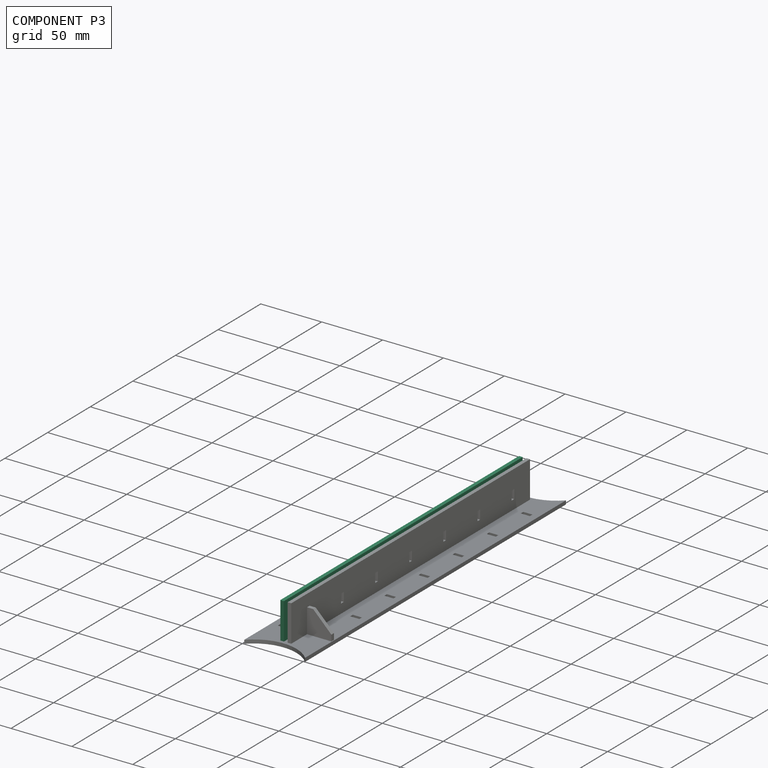
[diagram: component P3 — assembled]
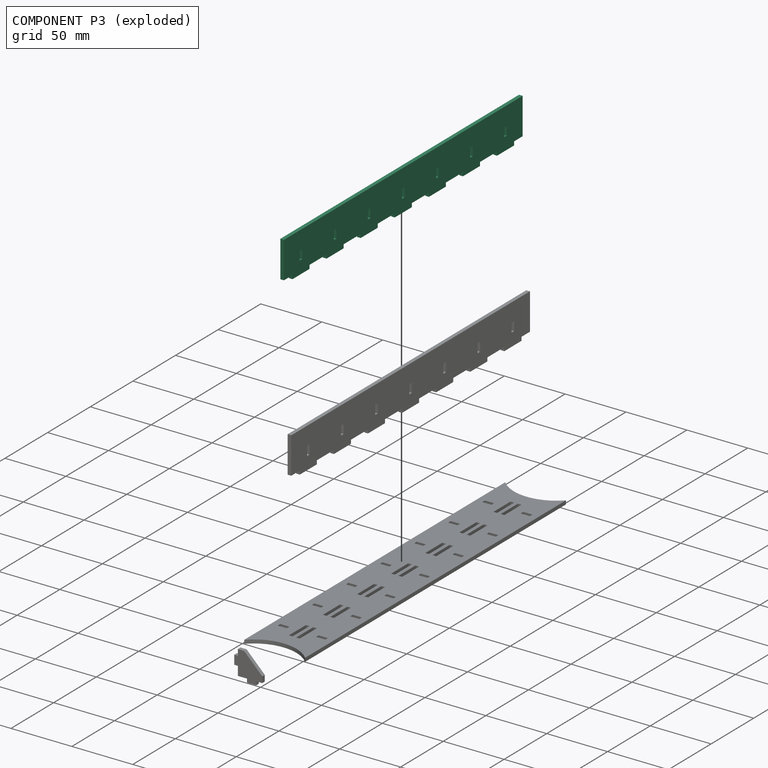
[diagram: component P3 — exploded]
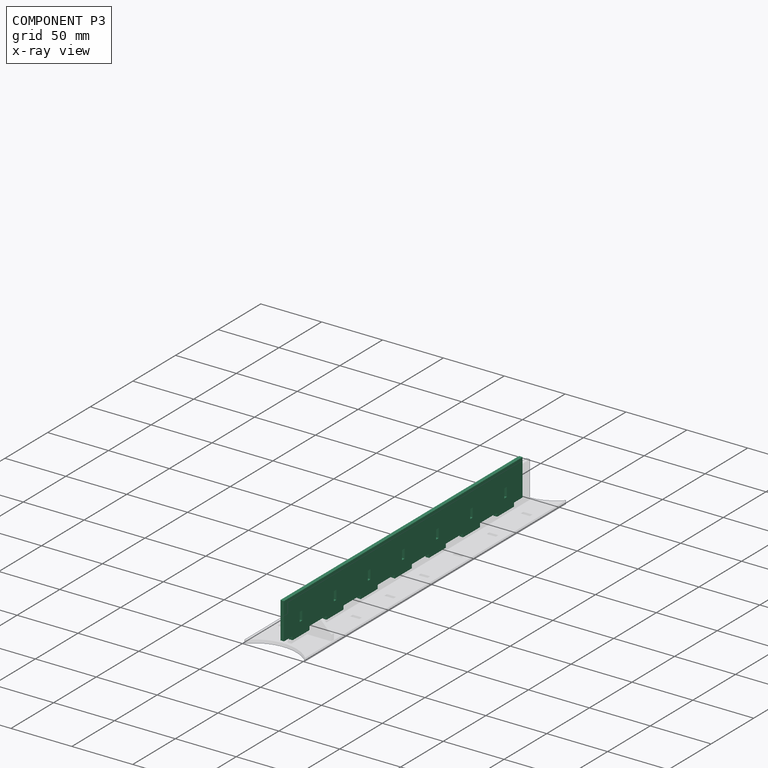
[diagram: component P3 — x-ray view]
COMPONENT P3 — same part as P0 (CADFS 00589759); its construction recipe is shown at P0.
Held by: FASTENED mate "Fastened 2" to P1.
PROVENANCE & LICENSES
Assembly (occurrences, transforms, mates, per-part STEP geometry): AutoMate dataset, Zenodo record 7776208, CC0.
Construction recipes: CADFS (HuggingFace VladPyatov/CADFS, CC-BY-4.0, layered over the ABC dataset), FeatureScript reconstruction programs keyed by ABC model id.
Join: ABC meta listings map ABC model id -> Onshape documentId; within a shared document, parts are matched by geometric signature (bounding-box dims + volume at 0.1% relative tolerance, exact B-rep face/solid counts).
Verification: 4 of this assembly's 4 components carry a recipe attachment, and every attachment is mesh-verified: the CADFS STEP and the AutoMate member STEP were compared as meshes in their shared local frame (symmetric sampled-point-to-mesh distance); worst across the 4 attachments: below the mesh-comparison resolution (tessellation chordal tolerance ~0.465 mm) on a 310 mm part.
Renders: orthographic iso camera (az 35 / el 25); the floor grid conveys scale (grid pitch printed in each image; no ruler). In the exploded view each component is displaced by its stored offset vector: the offsets alone carry the explosion direction (mate normal/axis signs are not orientation cues and do not encode it), and separation distances are assigned per mate-chain, not proportionally to assembly-order depth.
